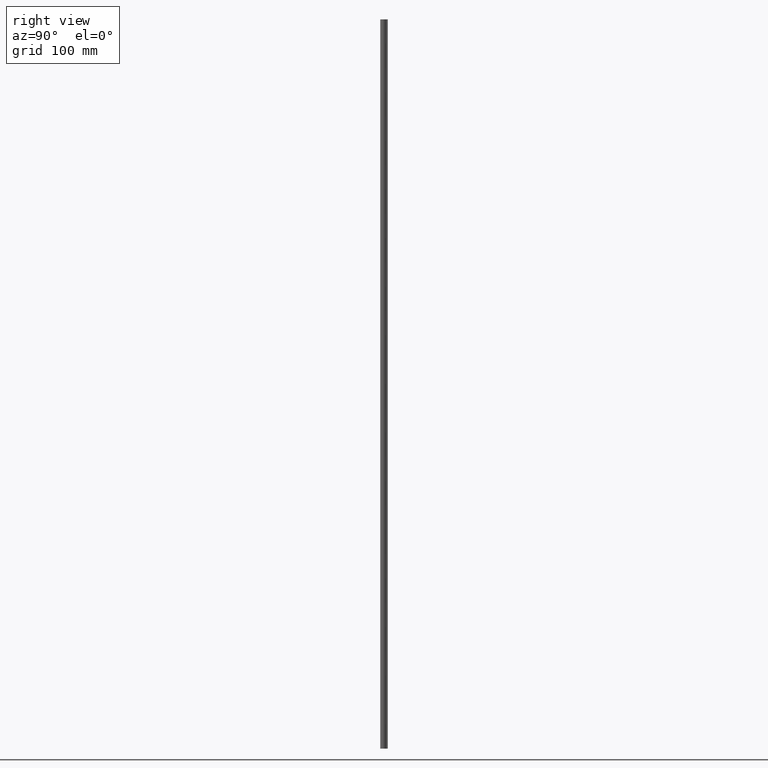
[diagram: clean part render]
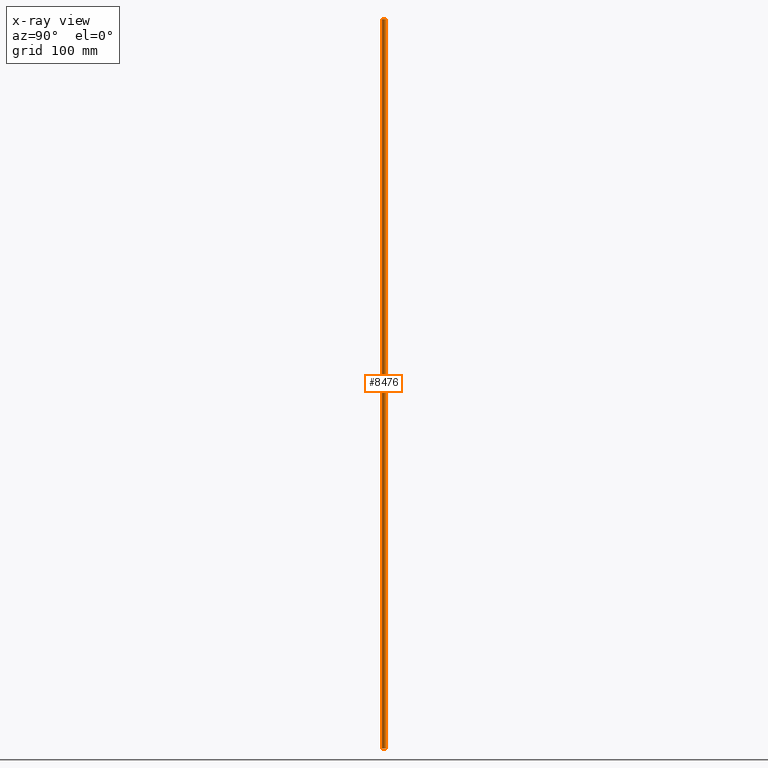
[diagram: x-ray — body ghosted, one internal face saturated and labeled with its STEP entity id]
A machine part, right view, then the same camera in x-ray: the body is ghosted and one INTERNAL B-rep face — a face not visible from any outside direction — is saturated and labeled: STEP entity #8476.
In plain terms, the highlighted face is a freeform B-spline surface patch.
Its self-contained STEP definition (entity closure, byte-faithful):
#8378=CARTESIAN_POINT('',(-0.117688643591768,-1.495376000599691,614.999977450000190));
#8379=CARTESIAN_POINT('',(-1.613064644191460,-1.377687357007923,614.999977450000190));
#8380=CARTESIAN_POINT('',(-1.495376000599691,0.117688643591768,614.999977450000190));
#8381=CARTESIAN_POINT('',(-1.377687357007923,1.613064644191460,614.999977450000190));
#8382=CARTESIAN_POINT('',(0.117688643591768,1.495376000599691,614.999977450000190));
#8383=CARTESIAN_POINT('',(-0.117688643591768,-1.495376000599691,-15.374999436250050));
#8384=CARTESIAN_POINT('',(-1.613064644191460,-1.377687357007923,-15.374999436250055));
#8385=CARTESIAN_POINT('',(-1.495376000599691,0.117688643591768,-15.374999436250050));
#8386=CARTESIAN_POINT('',(-1.377687357007923,1.613064644191460,-15.374999436250055));
#8387=CARTESIAN_POINT('',(0.117688643591768,1.495376000599691,-15.374999436250050));
#8395=(BOUNDED_SURFACE()B_SPLINE_SURFACE(2,1,((#8378,#8383),(#8379,#8384),(#8380,#8385),(#8381,#8386),(#8382,#8387)),.UNSPECIFIED.,.F.,.F.,.U.)B_SPLINE_SURFACE_WITH_KNOTS((3,2,3),(2,2),(3.141592653589793,4.712388980384690,6.283185307179586),(0.0,630.374976886250350),.UNSPECIFIED.)GEOMETRIC_REPRESENTATION_ITEM()RATIONAL_B_SPLINE_SURFACE(((1.0,1.0),(0.707106781186548,0.707106781186548),(1.0,1.0),(0.707106781186548,0.707106781186548),(1.0,1.0)))REPRESENTATION_ITEM('')SURFACE());
#8396=CARTESIAN_POINT('',(-1.500000000000000,0.0,0.0));
#8397=VERTEX_POINT('',#8396);
#8398=CARTESIAN_POINT('',(-0.117688645019883,-1.495376000487297,1.953993E-014));
#8399=VERTEX_POINT('',#8398);
#8400=CARTESIAN_POINT('',(-1.500000000000000,0.0,0.0));
#8401=CARTESIAN_POINT('',(-1.500000000000001,-1.386585734830686,0.0));
#8402=CARTESIAN_POINT('',(-0.117688645019882,-1.495376000487297,1.953993E-014));
#8410=(BOUNDED_CURVE()B_SPLINE_CURVE(2,(#8400,#8401,#8402),.UNSPECIFIED.,.F.,.U.)B_SPLINE_CURVE_WITH_KNOTS((3,3),(0.0,0.236331300305339),.UNSPECIFIED.)CURVE()GEOMETRIC_REPRESENTATION_ITEM()RATIONAL_B_SPLINE_CURVE((1.0,0.723120658988802,0.969723355488499))REPRESENTATION_ITEM(''));
#8411=EDGE_CURVE('',#8397,#8399,#8410,.T.);
#8412=ORIENTED_EDGE('',*,*,#8411,.T.);
#8413=CARTESIAN_POINT('',(-0.117688645019884,-1.495376000487297,599.999978000000060));
#8414=VERTEX_POINT('',#8413);
#8415=CARTESIAN_POINT('',(-0.117688645019884,-1.495376000487297,599.999978000000060));
#8416=CARTESIAN_POINT('',(-0.117688645019883,-1.495376000487297,1.953993E-014));
#8417=QUASI_UNIFORM_CURVE('',1,(#8415,#8416),.UNSPECIFIED.,.F.,.U.);
#8418=EDGE_CURVE('',#8414,#8399,#8417,.T.);
#8419=ORIENTED_EDGE('',*,*,#8418,.F.);
#8420=CARTESIAN_POINT('',(-1.500000000000000,0.0,599.999978000000060));
#8421=VERTEX_POINT('',#8420);
#8422=CARTESIAN_POINT('',(-1.500000000000000,0.0,599.999978000000060));
#8423=CARTESIAN_POINT('',(-1.500000000000000,-1.386585734830684,599.999978000000170));
#8424=CARTESIAN_POINT('',(-0.117688645019884,-1.495376000487297,599.999978000000060));
#8432=(BOUNDED_CURVE()B_SPLINE_CURVE(2,(#8422,#8423,#8424),.UNSPECIFIED.,.F.,.U.)B_SPLINE_CURVE_WITH_KNOTS((3,3),(0.0,0.236331300305339),.UNSPECIFIED.)CURVE()GEOMETRIC_REPRESENTATION_ITEM()RATIONAL_B_SPLINE_CURVE((1.0,0.723120658988803,0.969723355488498))REPRESENTATION_ITEM(''));
#8433=EDGE_CURVE('',#8421,#8414,#8432,.T.);
#8434=ORIENTED_EDGE('',*,*,#8433,.F.);
#8435=CARTESIAN_POINT('',(0.117688645019884,1.495376000487297,599.999978000000060));
#8436=VERTEX_POINT('',#8435);
#8437=CARTESIAN_POINT('',(0.117688645019884,1.495376000487297,599.999978000000060));
#8438=CARTESIAN_POINT('',(0.058935161946248,1.500000000000000,599.999977999999940));
#8439=CARTESIAN_POINT('',(0.0,1.500000000000000,599.999978000000060));
#8440=CARTESIAN_POINT('',(-1.500000000000000,1.500000000000000,599.999978000000060));
#8441=CARTESIAN_POINT('',(-1.500000000000000,0.0,599.999978000000060));
#8449=(BOUNDED_CURVE()B_SPLINE_CURVE(2,(#8437,#8438,#8439,#8440,#8441),.UNSPECIFIED.,.F.,.U.)B_SPLINE_CURVE_WITH_KNOTS((3,2,3),(0.736331300305339,0.750000000000000,1.0),.UNSPECIFIED.)CURVE()GEOMETRIC_REPRESENTATION_ITEM()RATIONAL_B_SPLINE_CURVE((0.969723355488498,0.983986122197745,1.0,0.707106781186548,1.0))REPRESENTATION_ITEM(''));
#8450=EDGE_CURVE('',#8436,#8421,#8449,.T.);
#8451=ORIENTED_EDGE('',*,*,#8450,.F.);
#8452=CARTESIAN_POINT('',(0.117688645019883,1.495376000487297,1.953993E-014));
#8453=VERTEX_POINT('',#8452);
#8454=CARTESIAN_POINT('',(0.117688645019884,1.495376000487297,599.999978000000060));
#8455=CARTESIAN_POINT('',(0.117688645019883,1.495376000487297,1.953993E-014));
#8456=QUASI_UNIFORM_CURVE('',1,(#8454,#8455),.UNSPECIFIED.,.F.,.U.);
#8457=EDGE_CURVE('',#8436,#8453,#8456,.T.);
#8458=ORIENTED_EDGE('',*,*,#8457,.T.);
#8459=CARTESIAN_POINT('',(0.117688645019882,1.495376000487297,1.953993E-014));
#8460=CARTESIAN_POINT('',(0.058935161946247,1.500000000000000,0.0));
#8461=CARTESIAN_POINT('',(0.0,1.500000000000000,0.0));
#8462=CARTESIAN_POINT('',(-1.500000000000000,1.500000000000000,0.0));
#8463=CARTESIAN_POINT('',(-1.500000000000000,0.0,0.0));
#8471=(BOUNDED_CURVE()B_SPLINE_CURVE(2,(#8459,#8460,#8461,#8462,#8463),.UNSPECIFIED.,.F.,.U.)B_SPLINE_CURVE_WITH_KNOTS((3,2,3),(0.736331300305339,0.750000000000000,1.0),.UNSPECIFIED.)CURVE()GEOMETRIC_REPRESENTATION_ITEM()RATIONAL_B_SPLINE_CURVE((0.969723355488499,0.983986122197745,1.0,0.707106781186548,1.0))REPRESENTATION_ITEM(''));
#8472=EDGE_CURVE('',#8453,#8397,#8471,.T.);
#8473=ORIENTED_EDGE('',*,*,#8472,.T.);
#8474=EDGE_LOOP('',(#8412,#8419,#8434,#8451,#8458,#8473));
#8475=FACE_OUTER_BOUND('',#8474,.T.);
#8476=ADVANCED_FACE('',(#8475),#8395,.T.);